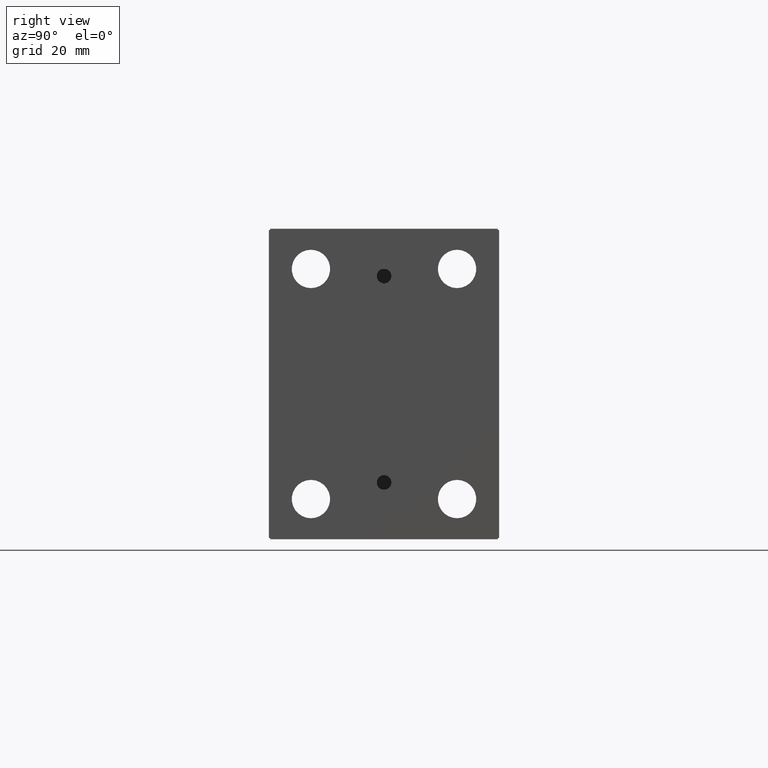
[diagram: clean part render]
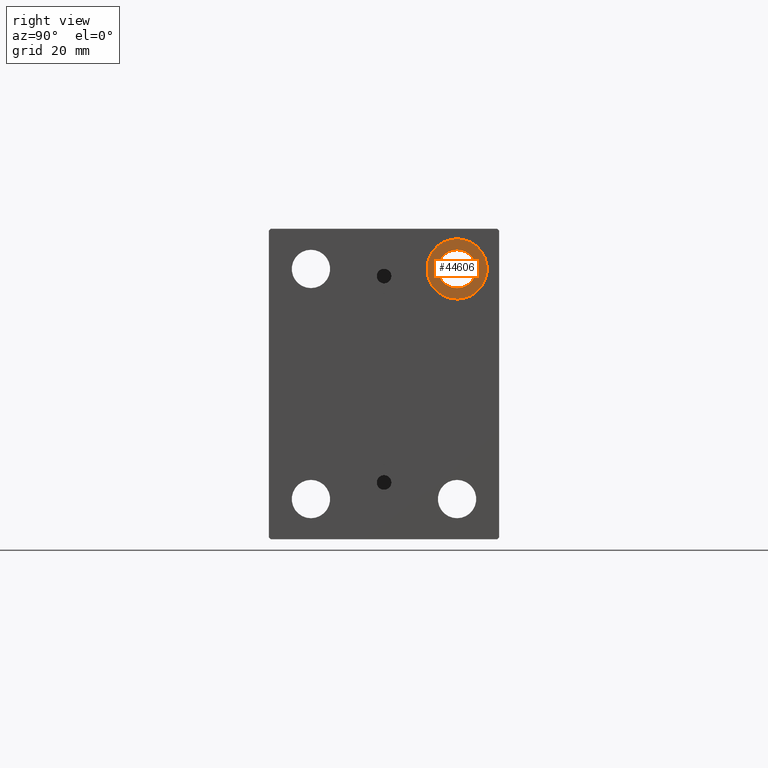
[diagram: same view with one face highlighted and labeled with its STEP entity id]
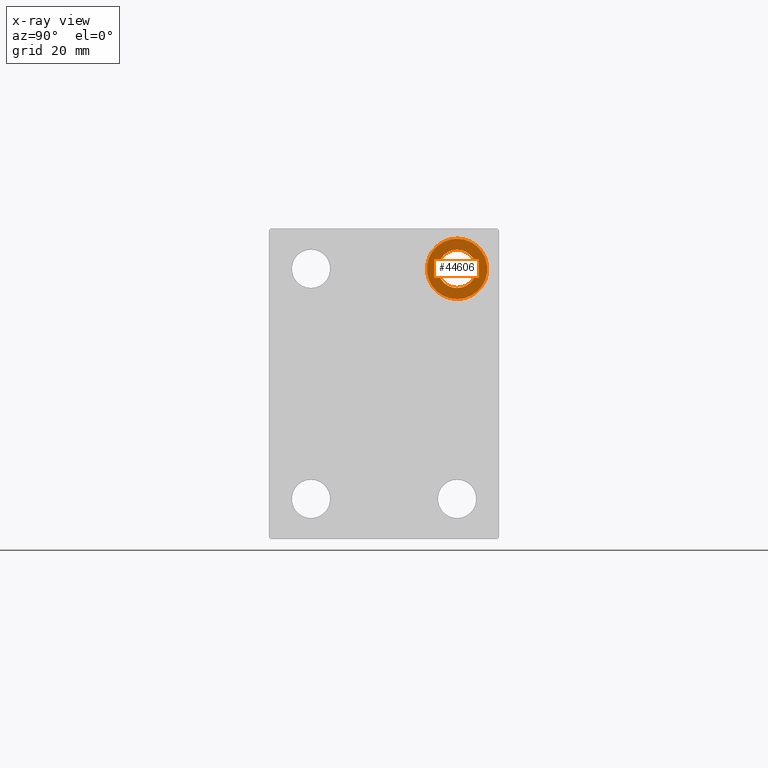
[diagram: x-ray of the same camera — body ghosted, the highlighted face saturated]
A machine part, right view. The second image highlights one B-rep face of the part: STEP entity #44606.
The next image is the same camera in x-ray: the body ghosted, the highlighted face saturated — about 0% of this face is hidden behind the body in this view.
In plain terms, the highlighted planar face has unit normal (1, 0, 0).
Its self-contained STEP definition (entity closure, byte-faithful):
#155 = CARTESIAN_POINT ( 'NONE',  ( 112.0000000000000000, 20.00000000000000355, 26.25000000000000355 ) ) ;
#704 = ORIENTED_EDGE ( 'NONE', *, *, #43770, .T. ) ;
#1630 = DIRECTION ( 'NONE',  ( -1.000000000000000000, -0.000000000000000000, -0.000000000000000000 ) ) ;
#2840 = DIRECTION ( 'NONE',  ( 0.000000000000000000, 0.000000000000000000, 1.000000000000000000 ) ) ;
#3241 = CARTESIAN_POINT ( 'NONE',  ( 112.0000000000000000, 20.00000000000000355, 39.74999999999999289 ) ) ;
#5375 = VERTEX_POINT ( 'NONE', #155 ) ;
#6539 = CARTESIAN_POINT ( 'NONE',  ( 112.0000000000000000, 20.00000000000000355, 31.50000000000000000 ) ) ;
#6547 = CIRCLE ( 'NONE', #19037, 5.249999999999997335 ) ;
#11146 = DIRECTION ( 'NONE',  ( 0.000000000000000000, 0.000000000000000000, -1.000000000000000000 ) ) ;
#11629 = EDGE_LOOP ( 'NONE', ( #38937, #33451 ) ) ;
#12631 = AXIS2_PLACEMENT_3D ( 'NONE', #6539, #34556, #28103 ) ;
#13164 = AXIS2_PLACEMENT_3D ( 'NONE', #34304, #44162, #2840 ) ;
#14800 = FACE_OUTER_BOUND ( 'NONE', #11629, .T. ) ;
#15648 = DIRECTION ( 'NONE',  ( 0.000000000000000000, 0.000000000000000000, -1.000000000000000000 ) ) ;
#19037 = AXIS2_PLACEMENT_3D ( 'NONE', #33099, #1630, #15648 ) ;
#20817 = CARTESIAN_POINT ( 'NONE',  ( 112.0000000000000000, 20.00000000000000355, 31.50000000000000000 ) ) ;
#21484 = PLANE ( 'NONE',  #33704 ) ;
#21974 = VERTEX_POINT ( 'NONE', #25515 ) ;
#22733 = VERTEX_POINT ( 'NONE', #27159 ) ;
#24477 = DIRECTION ( 'NONE',  ( -1.000000000000000000, -0.000000000000000000, -0.000000000000000000 ) ) ;
#25515 = CARTESIAN_POINT ( 'NONE',  ( 112.0000000000000000, 20.00000000000000355, 23.25000000000000355 ) ) ;
#27159 = CARTESIAN_POINT ( 'NONE',  ( 112.0000000000000000, 20.00000000000000355, 36.75000000000000000 ) ) ;
#27291 = CIRCLE ( 'NONE', #12631, 8.249999999999992895 ) ;
#28103 = DIRECTION ( 'NONE',  ( 0.000000000000000000, 0.000000000000000000, 1.000000000000000000 ) ) ;
#28350 = DIRECTION ( 'NONE',  ( 1.000000000000000000, 0.000000000000000000, -0.000000000000000000 ) ) ;
#28804 = FACE_BOUND ( 'NONE', #31387, .T. ) ;
#30755 = CIRCLE ( 'NONE', #13164, 8.249999999999992895 ) ;
#31387 = EDGE_LOOP ( 'NONE', ( #40250, #704 ) ) ;
#31572 = EDGE_CURVE ( 'NONE', #37968, #21974, #27291, .T. ) ;
#33099 = CARTESIAN_POINT ( 'NONE',  ( 112.0000000000000000, 20.00000000000000355, 31.50000000000000000 ) ) ;
#33316 = AXIS2_PLACEMENT_3D ( 'NONE', #20817, #24477, #11146 ) ;
#33451 = ORIENTED_EDGE ( 'NONE', *, *, #31572, .F. ) ;
#33704 = AXIS2_PLACEMENT_3D ( 'NONE', #42807, #28350, #36380 ) ;
#34304 = CARTESIAN_POINT ( 'NONE',  ( 112.0000000000000000, 20.00000000000000355, 31.50000000000000000 ) ) ;
#34556 = DIRECTION ( 'NONE',  ( -1.000000000000000000, -0.000000000000000000, -0.000000000000000000 ) ) ;
#36380 = DIRECTION ( 'NONE',  ( 0.000000000000000000, 0.000000000000000000, 1.000000000000000000 ) ) ;
#37654 = EDGE_CURVE ( 'NONE', #22733, #5375, #40649, .T. ) ;
#37968 = VERTEX_POINT ( 'NONE', #3241 ) ;
#38937 = ORIENTED_EDGE ( 'NONE', *, *, #43310, .F. ) ;
#40250 = ORIENTED_EDGE ( 'NONE', *, *, #37654, .T. ) ;
#40649 = CIRCLE ( 'NONE', #33316, 5.249999999999997335 ) ;
#42807 = CARTESIAN_POINT ( 'NONE',  ( 112.0000000000000000, 0.000000000000000000, 0.000000000000000000 ) ) ;
#43310 = EDGE_CURVE ( 'NONE', #21974, #37968, #30755, .T. ) ;
#43770 = EDGE_CURVE ( 'NONE', #5375, #22733, #6547, .T. ) ;
#44162 = DIRECTION ( 'NONE',  ( -1.000000000000000000, -0.000000000000000000, -0.000000000000000000 ) ) ;
#44606 = ADVANCED_FACE ( 'NONE', ( #14800, #28804 ), #21484, .T. ) ;